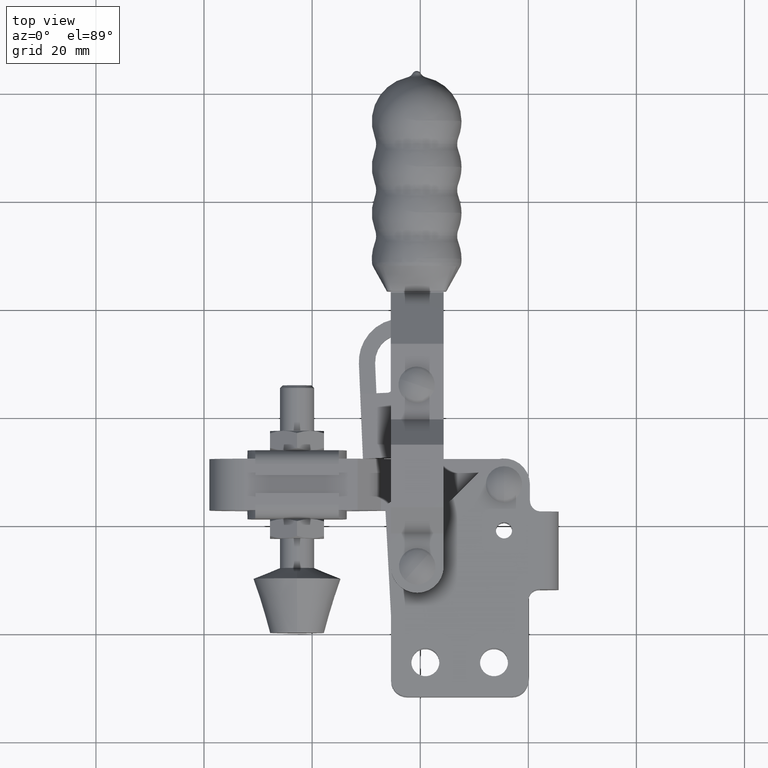
[diagram: clean part render]
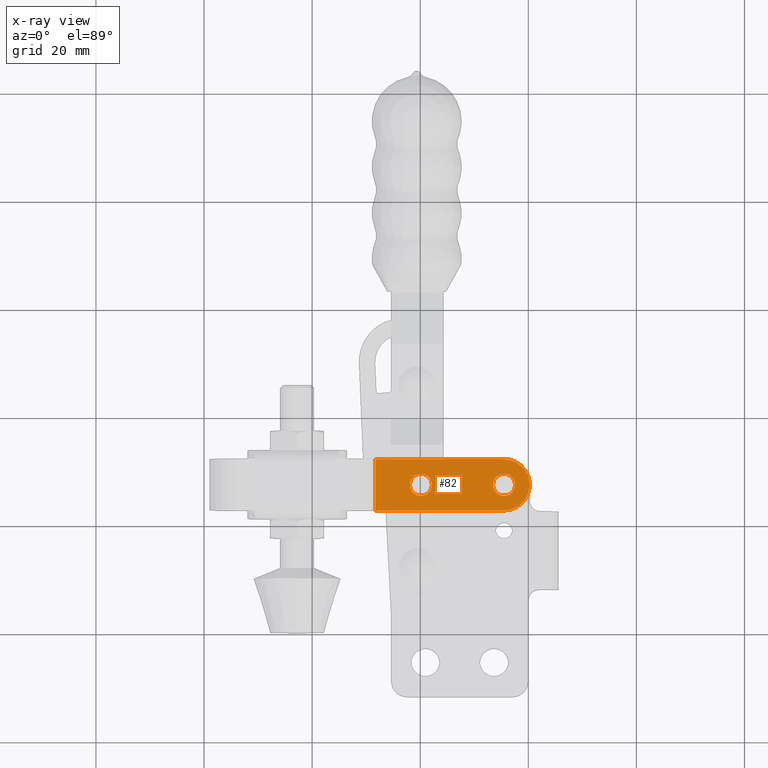
[diagram: x-ray — body ghosted, one internal face saturated and labeled with its STEP entity id]
A machine part, top view, then the same camera in x-ray: the body is ghosted and one INTERNAL B-rep face — a face not visible from any outside direction — is saturated and labeled: STEP entity #82.
In plain terms, the highlighted planar face has unit normal (0, 0, 1).
Its self-contained STEP definition (entity closure, byte-faithful):
#82 = ADVANCED_FACE ( 'NONE', ( #12935, #2482, #7919 ), #8570, .F. ) ;
#421 = VERTEX_POINT ( 'NONE', #8465 ) ;
#617 = DIRECTION ( 'NONE',  ( 1.000000000000000000, 0.0000000000000000000, -2.473225098265778900E-016 ) ) ;
#1087 = LINE ( 'NONE', #7999, #6253 ) ;
#1096 = DIRECTION ( 'NONE',  ( 1.000000000000000000, 0.0000000000000000000, -2.473225098265779400E-016 ) ) ;
#1180 = DIRECTION ( 'NONE',  ( 2.473228926711883500E-016, 0.0000000000000000000, 1.000000000000000000 ) ) ;
#1518 = VERTEX_POINT ( 'NONE', #6487 ) ;
#1687 = AXIS2_PLACEMENT_3D ( 'NONE', #10733, #4704, #11750 ) ;
#1759 = AXIS2_PLACEMENT_3D ( 'NONE', #5328, #12368, #6353 ) ;
#1774 = DIRECTION ( 'NONE',  ( 1.000000000000000000, 0.0000000000000000000, -2.473228926711883500E-016 ) ) ;
#1877 = ORIENTED_EDGE ( 'NONE', *, *, #12056, .T. ) ;
#1904 = VECTOR ( 'NONE', #3936, 1000.000000000000000 ) ;
#2045 = VERTEX_POINT ( 'NONE', #12949 ) ;
#2202 = ORIENTED_EDGE ( 'NONE', *, *, #6326, .F. ) ;
#2309 = CARTESIAN_POINT ( 'NONE',  ( -4.499999999999476900, 32.20000000000007400, 4.999999994946586800E-005 ) ) ;
#2365 = VERTEX_POINT ( 'NONE', #5661 ) ;
#2482 = FACE_BOUND ( 'NONE', #2688, .T. ) ;
#2688 = EDGE_LOOP ( 'NONE', ( #7462, #4121 ) ) ;
#2834 = CIRCLE ( 'NONE', #1759, 2.024999999999943500 ) ;
#3289 = EDGE_CURVE ( 'NONE', #6789, #10314, #4551, .T. ) ;
#3708 = DIRECTION ( 'NONE',  ( 2.473228926711883500E-016, 0.0000000000000000000, 1.000000000000000000 ) ) ;
#3936 = DIRECTION ( 'NONE',  ( 0.0000000000000000000, -1.000000000000000000, 0.0000000000000000000 ) ) ;
#4119 = CIRCLE ( 'NONE', #1687, 4.749999999999976900 ) ;
#4121 = ORIENTED_EDGE ( 'NONE', *, *, #9970, .T. ) ;
#4140 = LINE ( 'NONE', #4439, #7824 ) ;
#4439 = CARTESIAN_POINT ( 'NONE',  ( -34.83422535211248300, 22.70000000000012400, 4.999999995696821500E-005 ) ) ;
#4512 = CARTESIAN_POINT ( 'NONE',  ( -28.30877065937106400, 19.20000000000007700, 4.999999995523349100E-005 ) ) ;
#4525 = ORIENTED_EDGE ( 'NONE', *, *, #10644, .F. ) ;
#4551 = CIRCLE ( 'NONE', #5495, 2.024999999999943500 ) ;
#4667 = LINE ( 'NONE', #4512, #1904 ) ;
#4704 = DIRECTION ( 'NONE',  ( 2.473228926711883500E-016, 0.0000000000000000000, 1.000000000000000000 ) ) ;
#4979 = CARTESIAN_POINT ( 'NONE',  ( -34.83422535211248300, 22.70000000000012400, 4.999999995696821500E-005 ) ) ;
#5135 = ORIENTED_EDGE ( 'NONE', *, *, #9782, .T. ) ;
#5328 = CARTESIAN_POINT ( 'NONE',  ( -19.87999999999920700, 27.45000000000009900, 4.999999995286552600E-005 ) ) ;
#5495 = AXIS2_PLACEMENT_3D ( 'NONE', #7917, #3708, #1096 ) ;
#5661 = CARTESIAN_POINT ( 'NONE',  ( -4.499999999999476900, 22.70000000000012400, 4.999999994946586800E-005 ) ) ;
#6043 = DIRECTION ( 'NONE',  ( 2.473228926711883500E-016, 0.0000000000000000000, 1.000000000000000000 ) ) ;
#6173 = AXIS2_PLACEMENT_3D ( 'NONE', #7331, #1180, #8342 ) ;
#6253 = VECTOR ( 'NONE', #9010, 1000.000000000000000 ) ;
#6296 = EDGE_CURVE ( 'NONE', #1518, #421, #7681, .T. ) ;
#6326 = EDGE_CURVE ( 'NONE', #2045, #8480, #4667, .T. ) ;
#6353 = DIRECTION ( 'NONE',  ( 1.000000000000000000, 0.0000000000000000000, -2.473225098265779400E-016 ) ) ;
#6487 = CARTESIAN_POINT ( 'NONE',  ( -2.474999999999532900, 27.45000000000009900, 4.999999994889525200E-005 ) ) ;
#6731 = EDGE_CURVE ( 'NONE', #8480, #2365, #4140, .T. ) ;
#6789 = VERTEX_POINT ( 'NONE', #10241 ) ;
#7211 = ORIENTED_EDGE ( 'NONE', *, *, #6731, .F. ) ;
#7331 = CARTESIAN_POINT ( 'NONE',  ( -4.499999999999476900, 27.45000000000009900, 4.999999994939607900E-005 ) ) ;
#7462 = ORIENTED_EDGE ( 'NONE', *, *, #6296, .T. ) ;
#7681 = CIRCLE ( 'NONE', #10496, 2.024999999999944000 ) ;
#7824 = VECTOR ( 'NONE', #9292, 1000.000000000000000 ) ;
#7917 = CARTESIAN_POINT ( 'NONE',  ( -19.87999999999920700, 27.45000000000009900, 4.999999995286552600E-005 ) ) ;
#7919 = FACE_OUTER_BOUND ( 'NONE', #11769, .T. ) ;
#7999 = CARTESIAN_POINT ( 'NONE',  ( -34.83422535211248300, 32.20000000000007400, 4.999999995696821500E-005 ) ) ;
#8342 = DIRECTION ( 'NONE',  ( 1.000000000000000000, 0.0000000000000000000, -2.473225098265778900E-016 ) ) ;
#8465 = CARTESIAN_POINT ( 'NONE',  ( -6.524999999999420400, 27.45000000000009900, 4.999999994989690600E-005 ) ) ;
#8480 = VERTEX_POINT ( 'NONE', #11597 ) ;
#8570 = PLANE ( 'NONE',  #12177 ) ;
#9010 = DIRECTION ( 'NONE',  ( 1.000000000000000000, 0.0000000000000000000, -2.473228926711883500E-016 ) ) ;
#9292 = DIRECTION ( 'NONE',  ( 1.000000000000000000, 0.0000000000000000000, -2.473228926711883500E-016 ) ) ;
#9408 = EDGE_LOOP ( 'NONE', ( #1877, #12911 ) ) ;
#9782 = EDGE_CURVE ( 'NONE', #2045, #13175, #1087, .T. ) ;
#9970 = EDGE_CURVE ( 'NONE', #421, #1518, #11120, .T. ) ;
#10241 = CARTESIAN_POINT ( 'NONE',  ( -21.90499999999915200, 27.45000000000009900, 4.999999995336635300E-005 ) ) ;
#10314 = VERTEX_POINT ( 'NONE', #12938 ) ;
#10496 = AXIS2_PLACEMENT_3D ( 'NONE', #11014, #12353, #617 ) ;
#10644 = EDGE_CURVE ( 'NONE', #2365, #13175, #4119, .T. ) ;
#10733 = CARTESIAN_POINT ( 'NONE',  ( -4.499999999999476900, 27.45000000000009900, 4.999999994872827800E-005 ) ) ;
#11014 = CARTESIAN_POINT ( 'NONE',  ( -4.499999999999476900, 27.45000000000009900, 4.999999994939607900E-005 ) ) ;
#11120 = CIRCLE ( 'NONE', #6173, 2.024999999999944000 ) ;
#11597 = CARTESIAN_POINT ( 'NONE',  ( -28.30877065937106000, 22.70000000000012400, 4.999999995740189600E-005 ) ) ;
#11750 = DIRECTION ( 'NONE',  ( 1.000000000000000000, 0.0000000000000000000, -2.473224754278983100E-016 ) ) ;
#11769 = EDGE_LOOP ( 'NONE', ( #7211, #2202, #5135, #4525 ) ) ;
#12056 = EDGE_CURVE ( 'NONE', #10314, #6789, #2834, .T. ) ;
#12177 = AXIS2_PLACEMENT_3D ( 'NONE', #4979, #6043, #1774 ) ;
#12353 = DIRECTION ( 'NONE',  ( 2.473228926711883500E-016, 0.0000000000000000000, 1.000000000000000000 ) ) ;
#12368 = DIRECTION ( 'NONE',  ( 2.473228926711883500E-016, 0.0000000000000000000, 1.000000000000000000 ) ) ;
#12911 = ORIENTED_EDGE ( 'NONE', *, *, #3289, .T. ) ;
#12935 = FACE_BOUND ( 'NONE', #9408, .T. ) ;
#12938 = CARTESIAN_POINT ( 'NONE',  ( -17.85499999999926500, 27.45000000000009900, 4.999999995236469900E-005 ) ) ;
#12949 = CARTESIAN_POINT ( 'NONE',  ( -28.30877065937106400, 32.20000000000007400, 4.999999995507706800E-005 ) ) ;
#13175 = VERTEX_POINT ( 'NONE', #2309 ) ;